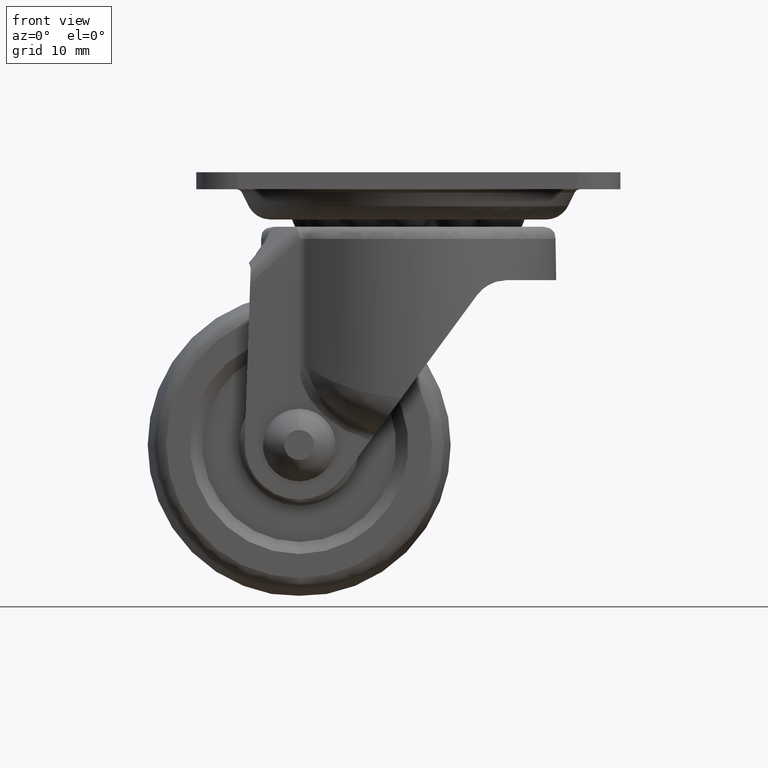
[diagram: clean part render]
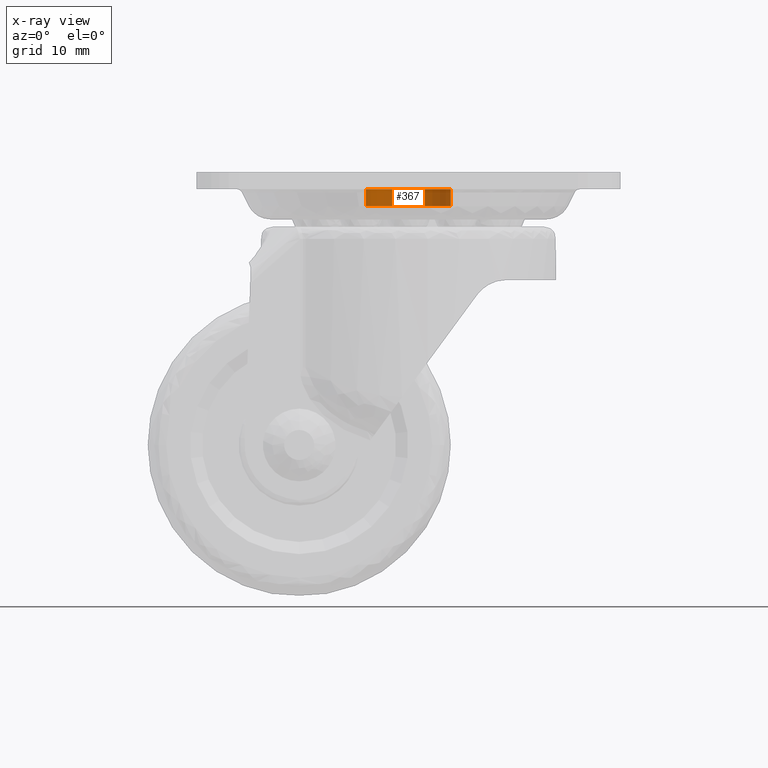
[diagram: x-ray — body ghosted, one internal face saturated and labeled with its STEP entity id]
A machine part, front view, then the same camera in x-ray: the body is ghosted and one INTERNAL B-rep face — a face not visible from any outside direction — is saturated and labeled: STEP entity #367.
In plain terms, the highlighted cylindrical surface (partial cylindrical patch) has radius 3.5 mm, axis along (-0, -0, -1).
Its self-contained STEP definition (entity closure, byte-faithful):
#367=ADVANCED_FACE('',(#1932),#1931,.F.);
#1931=CYLINDRICAL_SURFACE('',#4668,3.50000000000E+00);
#1932=FACE_OUTER_BOUND('',#4669,.T.);
#4665=CARTESIAN_POINT('',(3.55271367880E-15,0.00000000000E+00,-1.00000000000E+03));
#4666=DIRECTION('',(-0.00000000000E+00,-0.00000000000E+00,-1.00000000000E+00));
#4667=DIRECTION('',(-1.00000000000E+00,-0.00000000000E+00,-0.00000000000E+00));
#4668=AXIS2_PLACEMENT_3D('',#4665,#4666,#4667);
#4669=EDGE_LOOP('',(#6049,#6050,#6051,#6052));
#6049=ORIENTED_EDGE('',*,*,#6749,.T.);
#6050=ORIENTED_EDGE('',*,*,#6793,.T.);
#6051=ORIENTED_EDGE('',*,*,#6752,.F.);
#6052=ORIENTED_EDGE('',*,*,#6794,.F.);
#6749=EDGE_CURVE('',#9160,#9159,#9167,.T.);
#6752=EDGE_CURVE('',#9187,#9188,#9189,.T.);
#6793=EDGE_CURVE('',#9159,#9188,#9454,.T.);
#6794=EDGE_CURVE('',#9160,#9187,#9460,.T.);
#9159=VERTEX_POINT('',#12307);
#9160=VERTEX_POINT('',#12308);
#9167=CIRCLE('',#12316,3.50000000000E+00);
#9187=VERTEX_POINT('',#12327);
#9188=VERTEX_POINT('',#12328);
#9189=CIRCLE('',#12332,3.50000000000E+00);
#9454=(BOUNDED_CURVE() B_SPLINE_CURVE(1,(#12521,#12522),.UNSPECIFIED.,.F.,.F.) B_SPLINE_CURVE_WITH_KNOTS((2,2),(8.33333134656E-02,9.16666653270E-01),.UNSPECIFIED.) CURVE() GEOMETRIC_REPRESENTATION_ITEM() RATIONAL_B_SPLINE_CURVE((1.00000000000E+00,1.00000000000E+00)) REPRESENTATION_ITEM('') );
#9460=(BOUNDED_CURVE() B_SPLINE_CURVE(1,(#12523,#12524),.UNSPECIFIED.,.F.,.F.) B_SPLINE_CURVE_WITH_KNOTS((2,2),(8.33333333333E-02,9.16666666667E-01),.UNSPECIFIED.) CURVE() GEOMETRIC_REPRESENTATION_ITEM() RATIONAL_B_SPLINE_CURVE((7.50000000000E-01,7.50000000000E-01)) REPRESENTATION_ITEM('') );
#12307=CARTESIAN_POINT('',(-3.50000000000E+00,1.48029736617E-16,-1.40000200000E+00));
#12308=CARTESIAN_POINT('',(3.50000000000E+00,0.00000000000E+00,-1.40000200000E+00));
#12313=CARTESIAN_POINT('',(3.55271367880E-15,0.00000000000E+00,-1.40000200000E+00));
#12314=DIRECTION('',(0.00000000000E+00,0.00000000000E+00,1.00000000000E+00));
#12315=DIRECTION('',(1.00000000000E+00,-1.22460635382E-16,0.00000000000E+00));
#12316=AXIS2_PLACEMENT_3D('',#12313,#12314,#12315);
#12327=CARTESIAN_POINT('',(3.50000000000E+00,0.00000000000E+00,-2.80000200000E+00));
#12328=CARTESIAN_POINT('',(-3.50000000000E+00,1.48029736617E-16,-2.80000200000E+00));
#12329=CARTESIAN_POINT('',(3.55271367880E-15,0.00000000000E+00,-2.80000200000E+00));
#12330=DIRECTION('',(0.00000000000E+00,0.00000000000E+00,1.00000000000E+00));
#12331=DIRECTION('',(1.00000000000E+00,-1.22460635382E-16,0.00000000000E+00));
#12332=AXIS2_PLACEMENT_3D('',#12329,#12330,#12331);
#12521=CARTESIAN_POINT('',(-3.50000000000E+00,0.00000000000E+00,-1.40000196662E+00));
#12522=CARTESIAN_POINT('',(-3.50000000000E+00,0.00000000000E+00,-2.80000197749E+00));
#12523=CARTESIAN_POINT('',(3.50000000000E+00,0.00000000000E+00,-1.40000200000E+00));
#12524=CARTESIAN_POINT('',(3.50000000000E+00,0.00000000000E+00,-2.80000200000E+00));